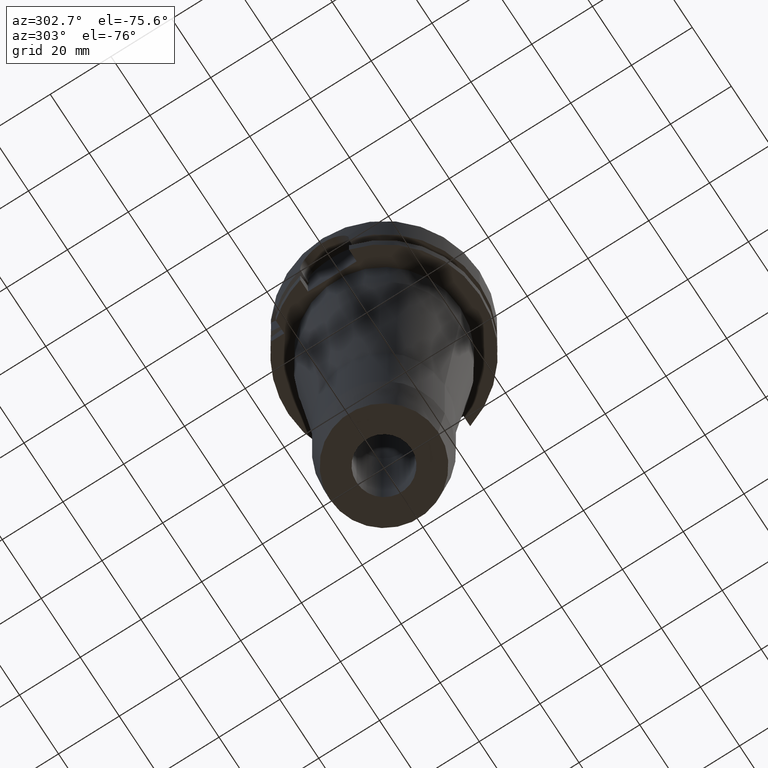
[diagram: clean part render]
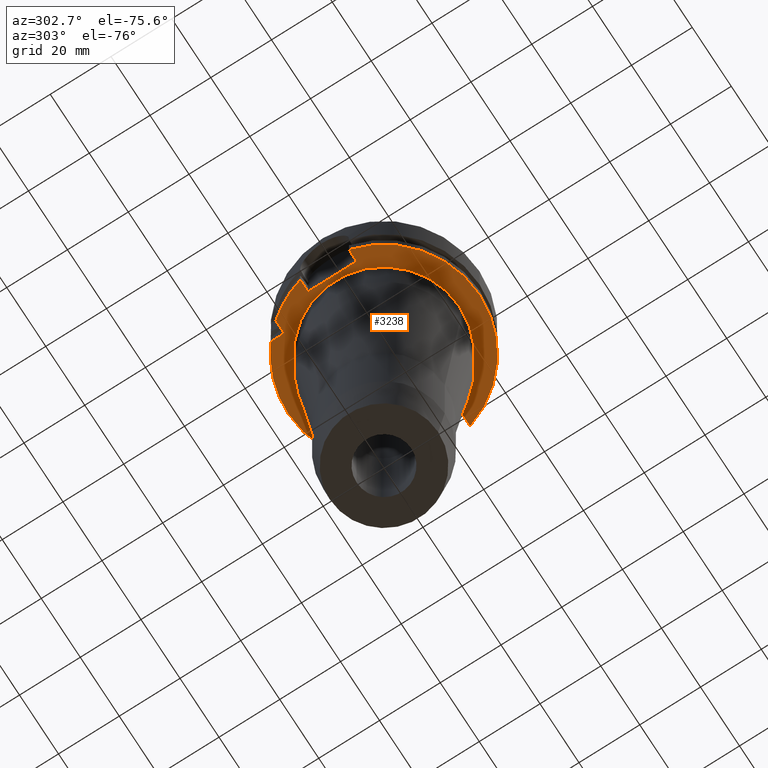
[diagram: same view with one face highlighted and labeled with its STEP entity id]
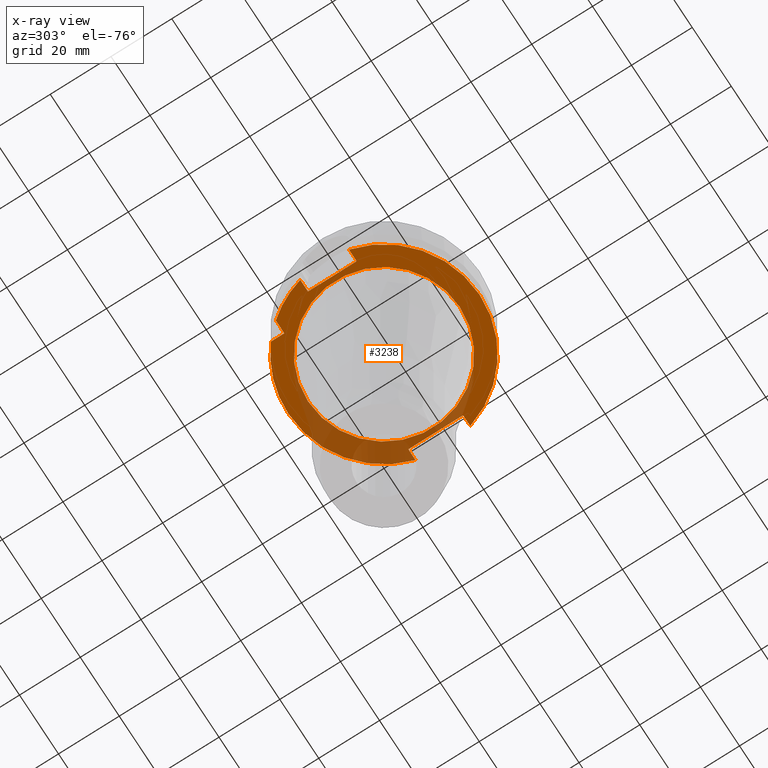
[diagram: x-ray of the same camera — body ghosted, the highlighted face saturated]
A machine part, auxiliary view. The second image highlights one B-rep face of the part: STEP entity #3238.
The next image is the same camera in x-ray: the body ghosted, the highlighted face saturated — about 27% of this face is hidden behind the body in this view.
In plain terms, the highlighted planar face has unit normal (0, 0, 1).
Its self-contained STEP definition (entity closure, byte-faithful):
#929=DIRECTION('',(0.E0,1.E0,0.E0));
#930=VECTOR('',#929,1.6E1);
#931=CARTESIAN_POINT('',(-2.65E1,-8.E0,-2.6E1));
#932=LINE('',#931,#930);
#966=DIRECTION('',(-1.E0,-1.540316790609E-13,0.E0));
#967=VECTOR('',#966,4.336187047278E0);
#968=CARTESIAN_POINT('',(-2.E1,2.E1,-2.6E1));
#969=LINE('',#968,#967);
#973=CARTESIAN_POINT('',(0.E0,0.E0,-2.6E1));
#974=DIRECTION('',(0.E0,0.E0,1.E0));
#975=DIRECTION('',(-7.725773665802E-1,6.349206349206E-1,0.E0));
#976=AXIS2_PLACEMENT_3D('',#973,#974,#975);
#981=DIRECTION('',(-1.E0,-8.686570378871E-14,0.E0));
#982=VECTOR('',#981,3.967195473163E0);
#983=CARTESIAN_POINT('',(-2.65E1,-8.E0,-2.6E1));
#984=LINE('',#983,#982);
#988=CARTESIAN_POINT('',(0.E0,0.E0,-2.6E1));
#989=DIRECTION('',(0.E0,0.E0,1.E0));
#990=DIRECTION('',(-9.672125547036E-1,-2.539682539683E-1,0.E0));
#991=AXIS2_PLACEMENT_3D('',#988,#989,#990);
#996=CARTESIAN_POINT('',(0.E0,0.E0,-2.6E1));
#997=DIRECTION('',(0.E0,0.E0,1.E0));
#998=DIRECTION('',(0.E0,-1.E0,0.E0));
#999=AXIS2_PLACEMENT_3D('',#996,#997,#998);
#1004=DIRECTION('',(-1.E0,-6.889739586341E-14,0.E0));
#1005=VECTOR('',#1004,3.686917696248E0);
#1006=CARTESIAN_POINT('',(3.018691769625E1,-9.E0,-2.6E1));
#1007=LINE('',#1006,#1005);
#1011=DIRECTION('',(0.E0,1.E0,0.E0));
#1012=VECTOR('',#1011,1.8E1);
#1013=CARTESIAN_POINT('',(2.65E1,-9.E0,-2.6E1));
#1014=LINE('',#1013,#1012);
#1018=CARTESIAN_POINT('',(0.E0,0.E0,-2.6E1));
#1019=DIRECTION('',(0.E0,0.E0,1.E0));
#1020=DIRECTION('',(9.583148474999E-1,2.857142857143E-1,0.E0));
#1021=AXIS2_PLACEMENT_3D('',#1018,#1019,#1020);
#1026=CARTESIAN_POINT('',(0.E0,0.E0,-2.6E1));
#1027=DIRECTION('',(0.E0,0.E0,1.E0));
#1028=DIRECTION('',(0.E0,1.E0,0.E0));
#1029=AXIS2_PLACEMENT_3D('',#1026,#1027,#1028);
#1034=CARTESIAN_POINT('',(0.E0,0.E0,-2.6E1));
#1035=DIRECTION('',(0.E0,0.E0,-1.E0));
#1036=DIRECTION('',(0.E0,-1.E0,0.E0));
#1037=AXIS2_PLACEMENT_3D('',#1034,#1035,#1036);
#1042=CARTESIAN_POINT('',(0.E0,0.E0,-2.6E1));
#1043=DIRECTION('',(0.E0,0.E0,-1.E0));
#1044=DIRECTION('',(0.E0,1.E0,0.E0));
#1045=AXIS2_PLACEMENT_3D('',#1042,#1043,#1044);
#1050=DIRECTION('',(1.556703139446E-13,1.E0,0.E0));
#1051=VECTOR('',#1050,4.336187047278E0);
#1052=CARTESIAN_POINT('',(-2.E1,2.E1,-2.6E1));
#1053=LINE('',#1052,#1051);
#1071=DIRECTION('',(-1.E0,7.275179563200E-14,0.E0));
#1072=VECTOR('',#1071,3.686917696248E0);
#1073=CARTESIAN_POINT('',(3.018691769625E1,9.E0,-2.6E1));
#1074=LINE('',#1073,#1072);
#1539=DIRECTION('',(-1.E0,8.776122650818E-14,0.E0));
#1540=VECTOR('',#1539,3.967195473163E0);
#1541=CARTESIAN_POINT('',(-2.65E1,8.E0,-2.6E1));
#1542=LINE('',#1541,#1540);
#2446=CARTESIAN_POINT('',(0.E0,2.5E1,-2.6E1));
#2447=VERTEX_POINT('',#2446);
#2448=CARTESIAN_POINT('',(0.E0,-2.5E1,-2.6E1));
#2449=VERTEX_POINT('',#2448);
#2450=CARTESIAN_POINT('',(-2.E1,2.E1,-2.6E1));
#2451=CARTESIAN_POINT('',(-2.E1,2.433618704728E1,-2.6E1));
#2452=VERTEX_POINT('',#2450);
#2453=VERTEX_POINT('',#2451);
#2454=CARTESIAN_POINT('',(-2.433618704728E1,2.E1,-2.6E1));
#2455=VERTEX_POINT('',#2454);
#2456=CARTESIAN_POINT('',(-3.046719547316E1,8.E0,-2.6E1));
#2457=VERTEX_POINT('',#2456);
#2458=CARTESIAN_POINT('',(-2.65E1,8.E0,-2.6E1));
#2459=VERTEX_POINT('',#2458);
#2460=CARTESIAN_POINT('',(-2.65E1,-8.E0,-2.6E1));
#2461=VERTEX_POINT('',#2460);
#2462=CARTESIAN_POINT('',(-3.046719547316E1,-8.E0,-2.6E1));
#2463=VERTEX_POINT('',#2462);
#2464=CARTESIAN_POINT('',(-1.294568961206E-14,-3.15E1,-2.6E1));
#2465=CARTESIAN_POINT('',(3.018691769625E1,-9.E0,-2.6E1));
#2466=VERTEX_POINT('',#2464);
#2467=VERTEX_POINT('',#2465);
#2468=CARTESIAN_POINT('',(2.65E1,-9.E0,-2.6E1));
#2469=VERTEX_POINT('',#2468);
#2470=CARTESIAN_POINT('',(2.65E1,9.E0,-2.6E1));
#2471=VERTEX_POINT('',#2470);
#2472=CARTESIAN_POINT('',(3.018691769625E1,9.E0,-2.6E1));
#2473=VERTEX_POINT('',#2472);
#2474=CARTESIAN_POINT('',(1.065814103640E-14,3.15E1,-2.6E1));
#2475=VERTEX_POINT('',#2474);
#3200=CARTESIAN_POINT('',(0.E0,0.E0,-2.6E1));
#3201=DIRECTION('',(0.E0,0.E0,1.E0));
#3202=DIRECTION('',(0.E0,1.E0,0.E0));
#3203=AXIS2_PLACEMENT_3D('',#3200,#3201,#3202);
#3204=PLANE('',#3203);
#3206=ORIENTED_EDGE('',*,*,#3205,.F.);
#3208=ORIENTED_EDGE('',*,*,#3207,.T.);
#3210=ORIENTED_EDGE('',*,*,#3209,.T.);
#3212=ORIENTED_EDGE('',*,*,#3211,.F.);
#3213=ORIENTED_EDGE('',*,*,#3177,.F.);
#3215=ORIENTED_EDGE('',*,*,#3214,.T.);
#3217=ORIENTED_EDGE('',*,*,#3216,.T.);
#3219=ORIENTED_EDGE('',*,*,#3218,.T.);
#3221=ORIENTED_EDGE('',*,*,#3220,.T.);
#3223=ORIENTED_EDGE('',*,*,#3222,.T.);
#3225=ORIENTED_EDGE('',*,*,#3224,.F.);
#3227=ORIENTED_EDGE('',*,*,#3226,.T.);
#3229=ORIENTED_EDGE('',*,*,#3228,.T.);
#3230=EDGE_LOOP('',(#3206,#3208,#3210,#3212,#3213,#3215,#3217,#3219,#3221,#3223,
#3225,#3227,#3229));
#3231=FACE_OUTER_BOUND('',#3230,.F.);
#3233=ORIENTED_EDGE('',*,*,#3232,.T.);
#3235=ORIENTED_EDGE('',*,*,#3234,.T.);
#3236=EDGE_LOOP('',(#3233,#3235));
#3237=FACE_BOUND('',#3236,.F.);
#977=CIRCLE('',#976,3.15E1);
#992=CIRCLE('',#991,3.15E1);
#1000=CIRCLE('',#999,3.15E1);
#1022=CIRCLE('',#1021,3.15E1);
#1030=CIRCLE('',#1029,3.15E1);
#1038=CIRCLE('',#1037,2.5E1);
#1046=CIRCLE('',#1045,2.5E1);
#3177=EDGE_CURVE('',#2461,#2459,#932,.T.);
#3205=EDGE_CURVE('',#2452,#2453,#1053,.T.);
#3207=EDGE_CURVE('',#2452,#2455,#969,.T.);
#3209=EDGE_CURVE('',#2455,#2457,#977,.T.);
#3211=EDGE_CURVE('',#2459,#2457,#1542,.T.);
#3214=EDGE_CURVE('',#2461,#2463,#984,.T.);
#3216=EDGE_CURVE('',#2463,#2466,#992,.T.);
#3218=EDGE_CURVE('',#2466,#2467,#1000,.T.);
#3220=EDGE_CURVE('',#2467,#2469,#1007,.T.);
#3222=EDGE_CURVE('',#2469,#2471,#1014,.T.);
#3224=EDGE_CURVE('',#2473,#2471,#1074,.T.);
#3226=EDGE_CURVE('',#2473,#2475,#1022,.T.);
#3228=EDGE_CURVE('',#2475,#2453,#1030,.T.);
#3232=EDGE_CURVE('',#2449,#2447,#1038,.T.);
#3234=EDGE_CURVE('',#2447,#2449,#1046,.T.);
#3238=ADVANCED_FACE('',(#3231,#3237),#3204,.F.);